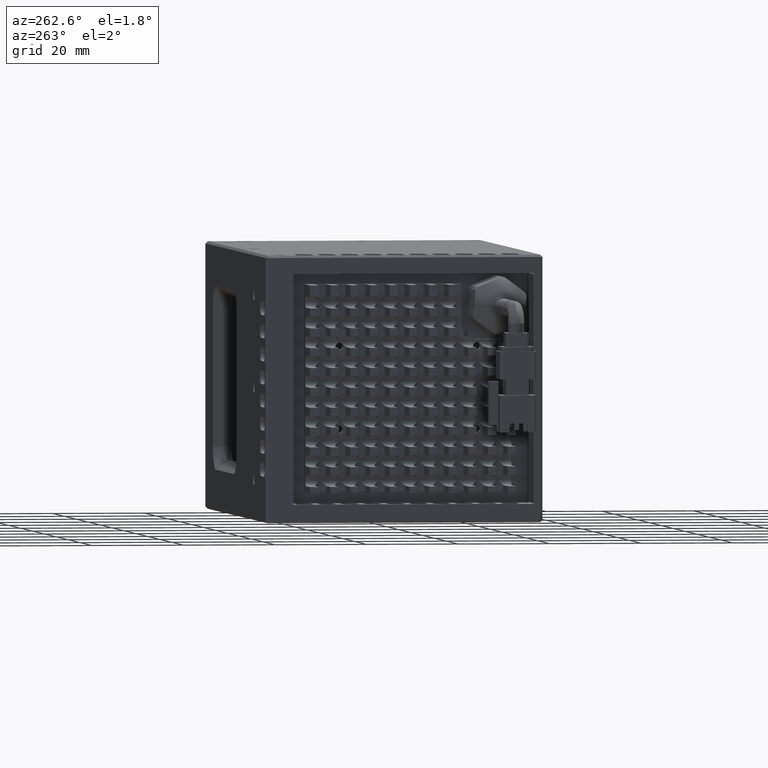
[diagram: clean part render]
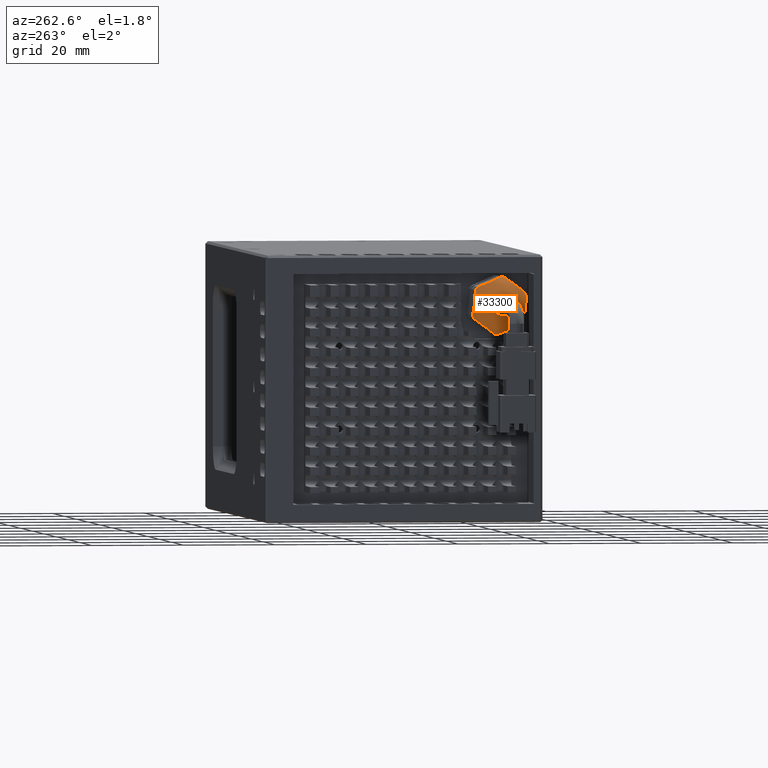
[diagram: same view with one face highlighted and labeled with its STEP entity id]
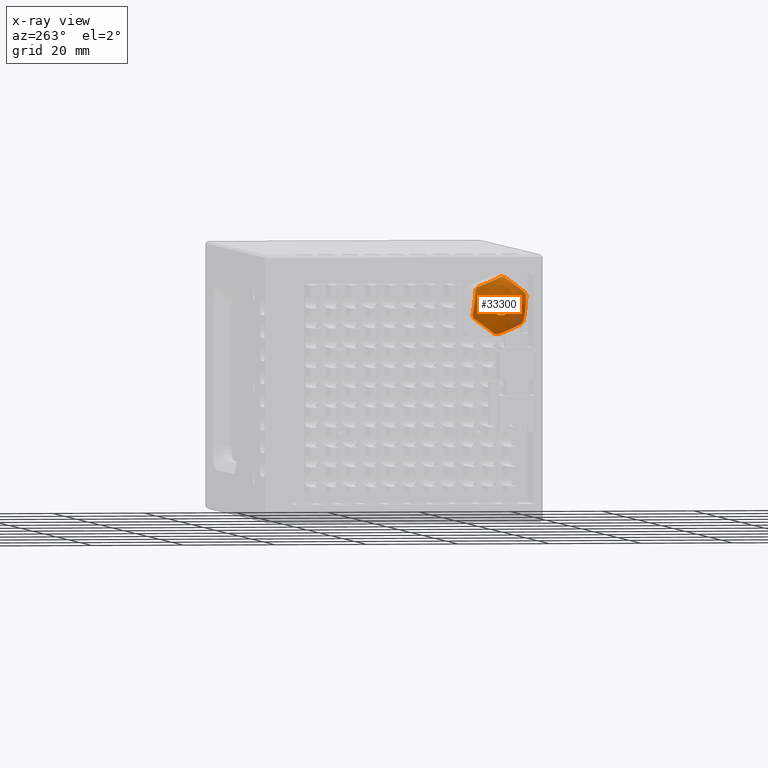
[diagram: x-ray of the same camera — body ghosted, the highlighted face saturated]
A machine part, auxiliary view. The second image highlights one B-rep face of the part: STEP entity #33300.
The next image is the same camera in x-ray: the body ghosted, the highlighted face saturated — about 18% of this face is hidden behind the body in this view.
In plain terms, the highlighted face is a freeform B-spline surface patch.
Its self-contained STEP definition (entity closure, byte-faithful):
#339 = B_SPLINE_CURVE_WITH_KNOTS ( 'NONE', 3,
 ( #25311, #30600, #67697, #35997, #4236, #41335, #9568, #46672, #14885, #51961, #20219, #57266, #25529, #62621, #30837, #67919 ),
 .UNSPECIFIED., .F., .F.,
 ( 4, 2, 2, 2, 2, 2, 2, 4 ),
 ( 1.319765775190741900E-016, 0.001475511169496877800, 0.002213266754245249300, 0.002951022338993621600, 0.003688777923741994200, 0.004426533508490366900, 0.005164289093238740400, 0.005902044677987113000 ),
 .UNSPECIFIED. ) ;
#423 = CIRCLE ( 'NONE', #9991, 6.249999999999515100 ) ;
#1558 = AXIS2_PLACEMENT_3D ( 'NONE', #48785, #17014, #54081 ) ;
#1718 = CARTESIAN_POINT ( 'NONE',  ( -68.86375292816285300, 1.775993330902647400, 47.00000000000953500 ) ) ;
#1729 = CARTESIAN_POINT ( 'NONE',  ( -69.15758857129378600, 1.732659728277374100, 40.91846227494003300 ) ) ;
#1946 = CARTESIAN_POINT ( 'NONE',  ( -69.14023917023453700, -2.613706873808888000, 42.79619360306332300 ) ) ;
#1994 = CARTESIAN_POINT ( 'NONE',  ( -68.86375292816285300, 1.775993330902647400, 47.00000000000953500 ) ) ;
#2747 = CARTESIAN_POINT ( 'NONE',  ( -69.67060427605069600, 3.094496305756325900, 52.53063493704631500 ) ) ;
#3124 = CARTESIAN_POINT ( 'NONE',  ( -69.46139549951456600, 7.533684453883029900, 45.96886008579814800 ) ) ;
#3510 = DIRECTION ( 'NONE',  ( 0.0000000000000000000, 0.1155358669953259300, -0.9933033088828600000 ) ) ;
#3586 = EDGE_LOOP ( 'NONE', ( #58492, #47617 ) ) ;
#3826 = FACE_OUTER_BOUND ( 'NONE', #49597, .T. ) ;
#4018 = CARTESIAN_POINT ( 'NONE',  ( -68.86375292816285300, -3.465854137917597600, 43.59624690766882100 ) ) ;
#4135 = CARTESIAN_POINT ( 'NONE',  ( -69.74788720313205200, 5.516405416110333500, 42.80281597644518900 ) ) ;
#4236 = CARTESIAN_POINT ( 'NONE',  ( -69.67060427605079600, -2.354425536202253700, 50.90717453971647200 ) ) ;
#4239 = CARTESIAN_POINT ( 'NONE',  ( -69.14023917023423800, -4.059459903799619500, 48.69968869381483500 ) ) ;
#4781 = CARTESIAN_POINT ( 'NONE',  ( -70.08185129819510500, 9.665487355787213600, 44.77912691616013100 ) ) ;
#5338 = ORIENTED_EDGE ( 'NONE', *, *, #27781, .T. ) ;
#7086 = DIRECTION ( 'NONE',  ( 0.0000000000000000000, 0.1155358669953666000, -0.9933033088828552300 ) ) ;
#7104 = CARTESIAN_POINT ( 'NONE',  ( -69.38120834824229600, 1.330491881488283800, 41.09220812617983400 ) ) ;
#7320 = CARTESIAN_POINT ( 'NONE',  ( -68.86375292816285300, -2.992679756905907600, 42.95991869122291700 ) ) ;
#7370 = DIRECTION ( 'NONE',  ( 0.0000000000000000000, 0.1155358669952932900, -0.9933033088828637800 ) ) ;
#7387 = ORIENTED_EDGE ( 'NONE', *, *, #40424, .T. ) ;
#7520 = B_SPLINE_CURVE_WITH_KNOTS ( 'NONE', 3,
 ( #55553, #29152, #66212, #34515, #2747, #39828, #8113, #45198, #13416, #50462, #18740, #55802, #24057, #61153, #29380, #66454 ),
 .UNSPECIFIED., .F., .F.,
 ( 4, 2, 2, 2, 2, 2, 2, 4 ),
 ( 2.596296363159514900E-017, 0.001475511169496785000, 0.002213266754245160400, 0.002951022338993536100, 0.003688777923741910100, 0.004426533508490284500, 0.005164289093238658800, 0.005902044677987033200 ),
 .UNSPECIFIED. ) ;
#8039 = CARTESIAN_POINT ( 'NONE',  ( -68.86375292816285300, 7.017840799722939900, 50.40375309235000900 ) ) ;
#8113 = CARTESIAN_POINT ( 'NONE',  ( -69.76751117526085000, 3.765905383833764800, 52.24057062004008900 ) ) ;
#8486 = CARTESIAN_POINT ( 'NONE',  ( -69.14023917023460800, 7.611446565604945000, 45.30031130620378800 ) ) ;
#9355 = CARTESIAN_POINT ( 'NONE',  ( -69.38120834824232500, -3.563055236811629700, 44.43191963570969700 ) ) ;
#9473 = CARTESIAN_POINT ( 'NONE',  ( -69.76791800731975000, 4.921827646007848500, 42.36068727452639800 ) ) ;
#9568 = CARTESIAN_POINT ( 'NONE',  ( -69.76751117526085000, -1.767517929904791800, 51.34359969915998100 ) ) ;
#9576 = CARTESIAN_POINT ( 'NONE',  ( -68.86375292816285300, -4.107156259765115900, 49.10975138200239300 ) ) ;
#9786 = VERTEX_POINT ( 'NONE', #19863 ) ;
#9991 = AXIS2_PLACEMENT_3D ( 'NONE', #1718, #38772, #7086 ) ;
#10058 = CARTESIAN_POINT ( 'NONE',  ( -76.08316824912812100, -1.440166118735522800, 43.48737515085923600 ) ) ;
#10138 = CARTESIAN_POINT ( 'NONE',  ( -68.86375292816285300, -2.992679756905907600, 42.95991869122291700 ) ) ;
#10774 = EDGE_CURVE ( 'NONE', #46756, #15233, #25694, .T. ) ;
#11130 = VERTEX_POINT ( 'NONE', #42309 ) ;
#11335 = CARTESIAN_POINT ( 'NONE',  ( -68.86375292816285300, -3.792667049684699700, 49.83769652459977800 ) ) ;
#12026 = CARTESIAN_POINT ( 'NONE',  ( -68.86375292816285300, 0.6615168280449691400, 53.14983269078837200 ) ) ;
#12061 = DIRECTION ( 'NONE',  ( 1.000000000000000000, 3.435095995686201000E-016, -5.943609381515295800E-025 ) ) ;
#12370 = CARTESIAN_POINT ( 'NONE',  ( -69.67060427605066800, 0.4574903560481536900, 41.46936506297194600 ) ) ;
#12371 = CIRCLE ( 'NONE', #19592, 2.000000000000002200 ) ;
#13416 = CARTESIAN_POINT ( 'NONE',  ( -69.74827311948452300, 4.449950362044707400, 51.94504730067372800 ) ) ;
#13702 = VERTEX_POINT ( 'NONE', #25810 ) ;
#13801 = CARTESIAN_POINT ( 'NONE',  ( -68.86375292816285300, 7.659142921570422800, 44.89024861801639300 ) ) ;
#13911 = EDGE_CURVE ( 'NONE', #15233, #22185, #60643, .T. ) ;
#14660 = CARTESIAN_POINT ( 'NONE',  ( -69.67060427605076700, -3.672928511056312100, 45.37653960267974900 ) ) ;
#14791 = CARTESIAN_POINT ( 'NONE',  ( -69.67125075074403600, 4.331099784588070100, 41.92142136905575700 ) ) ;
#14885 = CARTESIAN_POINT ( 'NONE',  ( -69.74827311948448000, -1.169564738817325400, 51.78823836793858200 ) ) ;
#15233 = VERTEX_POINT ( 'NONE', #61267 ) ;
#15394 = CARTESIAN_POINT ( 'NONE',  ( -67.11748828113987000, 5.592383779673666000, 41.10515007437504000 ) ) ;
#17014 = DIRECTION ( 'NONE',  ( 1.000000000000000000, 3.435095995686201000E-016, -5.943609381515295800E-025 ) ) ;
#17638 = CARTESIAN_POINT ( 'NONE',  ( -68.86375292816285300, 1.775993330902647400, 47.00000000000953500 ) ) ;
#17708 = CARTESIAN_POINT ( 'NONE',  ( -69.76751117526065100, -0.2139187220289190400, 41.75942937997803700 ) ) ;
#18388 = VERTEX_POINT ( 'NONE', #11335 ) ;
#18740 = CARTESIAN_POINT ( 'NONE',  ( -69.61395248318250100, 5.116209980309052200, 51.65720766991690000 ) ) ;
#18877 = CARTESIAN_POINT ( 'NONE',  ( -69.67060427605062500, 7.224915172861658500, 48.62346039733898100 ) ) ;
#18896 = EDGE_CURVE ( 'NONE', #9786, #31673, #56529, .T. ) ;
#19592 = AXIS2_PLACEMENT_3D ( 'NONE', #26876, #63931, #32187 ) ;
#19660 = CARTESIAN_POINT ( 'NONE',  ( -69.15758857129368700, 7.021092693573398200, 43.92170313676363900 ) ) ;
#19863 = CARTESIAN_POINT ( 'NONE',  ( -72.09568362246530200, 2.007065064893367900, 45.01339338224320800 ) ) ;
#19988 = CARTESIAN_POINT ( 'NONE',  ( -69.76751117526072200, -3.757429982836344900, 46.10302907912925000 ) ) ;
#20114 = VERTEX_POINT ( 'NONE', #36978 ) ;
#20124 = CARTESIAN_POINT ( 'NONE',  ( -69.46139549951458000, 3.761845531830432200, 41.49812326325859900 ) ) ;
#20219 = CARTESIAN_POINT ( 'NONE',  ( -69.61395248318247300, -0.5871584972338312900, 52.22131630749275600 ) ) ;
#20495 = CARTESIAN_POINT ( 'NONE',  ( -69.57956255432687000, 2.515760127302150400, 53.42479840440135800 ) ) ;
#20689 = ORIENTED_EDGE ( 'NONE', *, *, #59308, .T. ) ;
#20729 = CARTESIAN_POINT ( 'NONE',  ( -69.57956255432743800, 1.036226534503087900, 40.57520159561696000 ) ) ;
#21466 = CARTESIAN_POINT ( 'NONE',  ( -72.09568362246530200, 1.775993330902716700, 47.00000000000893200 ) ) ;
#22185 = VERTEX_POINT ( 'NONE', #58457 ) ;
#22985 = DIRECTION ( 'NONE',  ( 0.0000000000000000000, 0.1155358669953259300, -0.9933033088828600000 ) ) ;
#23047 = CARTESIAN_POINT ( 'NONE',  ( -69.74827311948423900, -0.8979637002394858000, 42.05495269934421300 ) ) ;
#24057 = CARTESIAN_POINT ( 'NONE',  ( -69.36540694991353500, 5.760612796175310600, 51.37881068547886800 ) ) ;
#24217 = CARTESIAN_POINT ( 'NONE',  ( -69.76751117526068000, 7.309416644641678400, 47.89697092088950100 ) ) ;
#25038 = CARTESIAN_POINT ( 'NONE',  ( -68.86375292816285300, 7.659142921570422800, 44.89024861801639300 ) ) ;
#25219 = CARTESIAN_POINT ( 'NONE',  ( -68.86375292816285300, 7.344653711489161000, 44.16230347541733900 ) ) ;
#25311 = CARTESIAN_POINT ( 'NONE',  ( -68.86375292816285300, -3.792667049684699700, 49.83769652459977800 ) ) ;
#25316 = CARTESIAN_POINT ( 'NONE',  ( -69.74827311948432400, -3.843521769959718600, 46.84319106727402700 ) ) ;
#25436 = CARTESIAN_POINT ( 'NONE',  ( -69.14023917023473600, 3.221746360893675800, 41.09650490925837100 ) ) ;
#25529 = CARTESIAN_POINT ( 'NONE',  ( -69.36540694991340700, -0.02385822844040110000, 52.64018702408416300 ) ) ;
#25694 = CIRCLE ( 'NONE', #42064, 6.249999999999516800 ) ;
#25807 = CARTESIAN_POINT ( 'NONE',  ( -67.11748828113964300, -2.040397117867909200, 52.89484992564335600 ) ) ;
#25810 = CARTESIAN_POINT ( 'NONE',  ( -68.86375292816285300, -4.107156259765115900, 49.10975138200239300 ) ) ;
#26772 = DIRECTION ( 'NONE',  ( 0.0000000000000000000, -0.1155358669953258200, 0.9933033088828601100 ) ) ;
#26876 = CARTESIAN_POINT ( 'NONE',  ( -72.09568362246530200, 1.775993330902716700, 47.00000000000893200 ) ) ;
#27781 = EDGE_CURVE ( 'NONE', #55237, #37792, #44369, .T. ) ;
#28319 = AXIS2_PLACEMENT_3D ( 'NONE', #31019, #68104, #36409 ) ;
#28327 = CIRCLE ( 'NONE', #40387, 6.249999999999519500 ) ;
#28348 = CARTESIAN_POINT ( 'NONE',  ( -69.61395248318233100, -1.564223318503453500, 42.34279233010092000 ) ) ;
#29152 = CARTESIAN_POINT ( 'NONE',  ( -69.15758857129343100, 1.819326933526871400, 53.08153772507832700 ) ) ;
#29380 = CARTESIAN_POINT ( 'NONE',  ( -69.01067074972824900, 6.359593161516713200, 51.12003725472583000 ) ) ;
#29524 = CARTESIAN_POINT ( 'NONE',  ( -69.74827311948443800, 7.395508431765049900, 47.15680893274469600 ) ) ;
#29716 = ORIENTED_EDGE ( 'NONE', *, *, #35126, .F. ) ;
#30514 = CARTESIAN_POINT ( 'NONE',  ( -69.38120834824218300, 6.669540449203119600, 43.66028849047898300 ) ) ;
#30534 = EDGE_CURVE ( 'NONE', #11130, #56916, #7520, .T. ) ;
#30600 = CARTESIAN_POINT ( 'NONE',  ( -69.15758857129357300, -3.469106031768471400, 50.07829686325383300 ) ) ;
#30606 = CARTESIAN_POINT ( 'NONE',  ( -69.61395248318233100, -3.927375146640508200, 47.56410863758488000 ) ) ;
#30723 = CARTESIAN_POINT ( 'NONE',  ( -68.86375292816285300, 2.890469833762177000, 40.85016730923076300 ) ) ;
#30837 = CARTESIAN_POINT ( 'NONE',  ( -69.01067074972813500, 0.4997363190867983900, 53.02953252146132700 ) ) ;
#31019 = CARTESIAN_POINT ( 'NONE',  ( -68.86375292816285300, 1.775993330902647400, 47.00000000000953500 ) ) ;
#31101 =( BOUNDED_SURFACE ( )  B_SPLINE_SURFACE ( 3, 3, ( 
 ( #67968, #20495, #57563, #25807 ),
 ( #62890, #31117, #68204, #36498 ),
 ( #4781, #41860, #10058, #47160 ),
 ( #15394, #52467, #20729, #57805 ) ),
 .UNSPECIFIED., .F., .F., .F. ) 
 B_SPLINE_SURFACE_WITH_KNOTS ( ( 4, 4 ),
 ( 4, 4 ),
 ( 0.0000000000000000000, 1.000000000000000000 ),
 ( 0.0000000000000000000, 1.000000000000000000 ),
 .UNSPECIFIED. ) 
 GEOMETRIC_REPRESENTATION_ITEM ( )  RATIONAL_B_SPLINE_SURFACE ( (
 ( 1.000000000000000000, 0.7017694484579010100, 0.7017694484579010100, 1.000000000000000000),
 ( 0.6732171387617810200, 0.4724432201612612800, 0.4724432201612612800, 0.6732171387617810200),
 ( 0.6732171387617810200, 0.4724432201612612800, 0.4724432201612612800, 0.6732171387617810200),
 ( 1.000000000000000000, 0.7017694484579010100, 0.7017694484579010100, 1.000000000000000000) ) ) 
 REPRESENTATION_ITEM ( '' )  SURFACE ( )  );
#31117 = CARTESIAN_POINT ( 'NONE',  ( -76.08316824912783700, 4.992152780540819500, 50.51262484915948600 ) ) ;
#31673 = VERTEX_POINT ( 'NONE', #55399 ) ;
#32118 = B_SPLINE_CURVE_WITH_KNOTS ( 'NONE', 3,
 ( #25219, #19660, #30514, #67607, #35902, #4135, #41232, #9473, #46566, #14791, #51865, #20124, #57178, #25436, #62528, #30723 ),
 .UNSPECIFIED., .F., .F.,
 ( 4, 2, 2, 2, 2, 2, 2, 4 ),
 ( 3.506984956607857700E-016, 0.001475511169496294900, 0.002213266754244266200, 0.002951022338992237300, 0.003688777923740208700, 0.004426533508488178500, 0.005164289093236150400, 0.005902044677984120600 ),
 .UNSPECIFIED. ) ;
#32140 = ORIENTED_EDGE ( 'NONE', *, *, #13911, .F. ) ;
#32187 = DIRECTION ( 'NONE',  ( 0.0000000000000000000, -0.1155358669953258200, 0.9933033088828601100 ) ) ;
#32302 = CIRCLE ( 'NONE', #61443, 6.249999999999519500 ) ;
#33300 = ADVANCED_FACE ( 'NONE', ( #60203, #3826 ), #31101, .T. ) ;
#33491 = EDGE_CURVE ( 'NONE', #20114, #54142, #423, .T. ) ;
#33586 = CIRCLE ( 'NONE', #28319, 6.249999999999519500 ) ;
#33715 = CARTESIAN_POINT ( 'NONE',  ( -69.36540694991359100, -2.208626134369361600, 42.62118931453878200 ) ) ;
#34436 = CARTESIAN_POINT ( 'NONE',  ( -69.38120834824201200, 7.115041898616981400, 49.56808036430897600 ) ) ;
#34515 = CARTESIAN_POINT ( 'NONE',  ( -69.61245713189376300, 2.872257331551832500, 52.62664733599891800 ) ) ;
#34893 = CARTESIAN_POINT ( 'NONE',  ( -69.61395248318253000, 7.479361808445839100, 46.43589136243380700 ) ) ;
#35126 = EDGE_CURVE ( 'NONE', #18388, #13702, #28327, .T. ) ;
#35138 = VERTEX_POINT ( 'NONE', #44097 ) ;
#35277 = DIRECTION ( 'NONE',  ( 1.000000000000000000, 3.435095995686201000E-016, -5.943609381515295800E-025 ) ) ;
#35902 = CARTESIAN_POINT ( 'NONE',  ( -69.67060427605058200, 5.906412198007584100, 43.09282546030131300 ) ) ;
#35997 = CARTESIAN_POINT ( 'NONE',  ( -69.61245713189387600, -2.548694199875747300, 50.76271614182066800 ) ) ;
#36001 = CARTESIAN_POINT ( 'NONE',  ( -69.36540694991344900, -4.008477693713319700, 48.26137633861409200 ) ) ;
#36409 = DIRECTION ( 'NONE',  ( 0.0000000000000000000, 0.1155358669953259300, -0.9933033088828600000 ) ) ;
#36498 = CARTESIAN_POINT ( 'NONE',  ( -70.08185129819501900, -6.113500693981673200, 49.22087308385862800 ) ) ;
#36847 = EDGE_CURVE ( 'NONE', #55237, #56916, #36933, .T. ) ;
#36933 = CIRCLE ( 'NONE', #45878, 6.249999999999519500 ) ;
#36978 = CARTESIAN_POINT ( 'NONE',  ( -68.86375292816285300, -3.465854137917597600, 43.59624690766882100 ) ) ;
#37395 = ORIENTED_EDGE ( 'NONE', *, *, #61141, .T. ) ;
#37740 = CARTESIAN_POINT ( 'NONE',  ( -68.86375292816285300, 2.102806242668322900, 40.75855038307755500 ) ) ;
#37792 = VERTEX_POINT ( 'NONE', #25038 ) ;
#38546 = ORIENTED_EDGE ( 'NONE', *, *, #36847, .F. ) ;
#38772 = DIRECTION ( 'NONE',  ( 1.000000000000000000, 3.435095995686201000E-016, -5.943609381515295800E-025 ) ) ;
#38793 = CARTESIAN_POINT ( 'NONE',  ( -68.86375292816285300, 2.102806242668322900, 40.75855038307755500 ) ) ;
#39022 = CARTESIAN_POINT ( 'NONE',  ( -69.01067074972844800, -2.807606499710740600, 42.87996274529179200 ) ) ;
#39075 = DIRECTION ( 'NONE',  ( 1.000000000000000000, 3.435095995686201000E-016, -5.943609381515295800E-025 ) ) ;
#39134 = ORIENTED_EDGE ( 'NONE', *, *, #48254, .F. ) ;
#39828 = CARTESIAN_POINT ( 'NONE',  ( -69.74788720313222300, 3.540655277063015300, 52.33788389820305300 ) ) ;
#40226 = CARTESIAN_POINT ( 'NONE',  ( -69.36540694991369100, 7.560464355518643500, 45.73862366140457400 ) ) ;
#40387 = AXIS2_PLACEMENT_3D ( 'NONE', #17638, #54693, #22985 ) ;
#40424 = EDGE_CURVE ( 'NONE', #20114, #13702, #64650, .T. ) ;
#40681 = ORIENTED_EDGE ( 'NONE', *, *, #10774, .F. ) ;
#40866 = EDGE_CURVE ( 'NONE', #41146, #11130, #33586, .T. ) ;
#41146 = VERTEX_POINT ( 'NONE', #12026 ) ;
#41232 = CARTESIAN_POINT ( 'NONE',  ( -69.76751117526056600, 5.319504591710440900, 42.65640030085803100 ) ) ;
#41335 = CARTESIAN_POINT ( 'NONE',  ( -69.74788720313225100, -1.964418754304794800, 51.19718402357275300 ) ) ;
#41349 = CARTESIAN_POINT ( 'NONE',  ( -69.01067074972826300, -4.083863511527429300, 48.90949526674420900 ) ) ;
#41860 = CARTESIAN_POINT ( 'NONE',  ( -76.08316824912810700, 5.712523559291454100, 44.31933875745265500 ) ) ;
#42064 = AXIS2_PLACEMENT_3D ( 'NONE', #1994, #39075, #7370 ) ;
#42309 = CARTESIAN_POINT ( 'NONE',  ( -68.86375292816285300, 1.449180419135050600, 53.24144961694118200 ) ) ;
#42837 = EDGE_CURVE ( 'NONE', #31673, #9786, #12371, .T. ) ;
#43048 = CARTESIAN_POINT ( 'NONE',  ( -68.86375292816285300, 6.544666418712424200, 51.04008130879449800 ) ) ;
#43851 = CARTESIAN_POINT ( 'NONE',  ( -68.86375292816285300, 1.775993330902647400, 47.00000000000953500 ) ) ;
#44097 = CARTESIAN_POINT ( 'NONE',  ( -68.86375292816285300, 7.344653711489161000, 44.16230347541733900 ) ) ;
#44166 = CARTESIAN_POINT ( 'NONE',  ( -69.61245713189381900, 0.6797293302525440100, 41.37335266401940700 ) ) ;
#44369 = B_SPLINE_CURVE_WITH_KNOTS ( 'NONE', 3,
 ( #8039, #45360, #34436, #50613, #18877, #55953, #24217, #61315, #29524, #66610, #34893, #3124, #40226, #8486, #45586, #13801 ),
 .UNSPECIFIED., .F., .F.,
 ( 4, 2, 2, 2, 2, 2, 2, 4 ),
 ( 1.497122641742852700E-016, 0.001475511169496494800, 0.002213266754244667300, 0.002951022338992840100, 0.003688777923741012800, 0.004426533508489185500, 0.005164289093237358700, 0.005902044677985531000 ),
 .UNSPECIFIED. ) ;
#45198 = CARTESIAN_POINT ( 'NONE',  ( -69.76791800732003400, 4.220838849718489000, 52.04402879572795400 ) ) ;
#45360 = CARTESIAN_POINT ( 'NONE',  ( -69.15758857129347300, 7.064426296198351300, 50.00324086183330500 ) ) ;
#45586 = CARTESIAN_POINT ( 'NONE',  ( -69.01067074972847600, 7.635850173332784200, 45.09050473327419400 ) ) ;
#45878 = AXIS2_PLACEMENT_3D ( 'NONE', #43851, #12061, #49166 ) ;
#46098 = ORIENTED_EDGE ( 'NONE', *, *, #30534, .T. ) ;
#46442 = CARTESIAN_POINT ( 'NONE',  ( -69.61245713189386200, -3.644958200525246100, 45.13606880583137800 ) ) ;
#46566 = CARTESIAN_POINT ( 'NONE',  ( -69.74827311948429600, 4.721551400623289900, 42.21176163207969300 ) ) ;
#46583 = EDGE_CURVE ( 'NONE', #35138, #22185, #32118, .T. ) ;
#46672 = CARTESIAN_POINT ( 'NONE',  ( -69.76791800731994900, -1.369840984201970800, 51.63931272549179100 ) ) ;
#46756 = VERTEX_POINT ( 'NONE', #37740 ) ;
#47160 = CARTESIAN_POINT ( 'NONE',  ( -70.08185129819513300, -5.393129915231303300, 43.02758699215177500 ) ) ;
#47617 = ORIENTED_EDGE ( 'NONE', *, *, #18896, .T. ) ;
#48254 = EDGE_CURVE ( 'NONE', #35138, #37792, #32302, .T. ) ;
#48785 = CARTESIAN_POINT ( 'NONE',  ( -68.86375292816285300, 1.775993330902647400, 47.00000000000953500 ) ) ;
#49166 = DIRECTION ( 'NONE',  ( 0.0000000000000000000, 0.1155358669953259300, -0.9933033088828600000 ) ) ;
#49168 = B_SPLINE_CURVE_WITH_KNOTS ( 'NONE', 3,
 ( #38793, #1729, #7104, #44166, #12370, #49474, #17708, #54756, #23047, #60114, #28348, #65413, #33715, #1946, #39022, #7320 ),
 .UNSPECIFIED., .F., .F.,
 ( 4, 2, 2, 2, 2, 2, 2, 4 ),
 ( 4.690887623826672200E-016, 0.001475511169496401600, 0.002213266754244368100, 0.002951022338992334400, 0.003688777923740300700, 0.004426533508488267000, 0.005164289093236232800, 0.005902044677984199600 ),
 .UNSPECIFIED. ) ;
#49474 = CARTESIAN_POINT ( 'NONE',  ( -69.74788720313206600, 0.01133138474170054300, 41.66211610181510800 ) ) ;
#49597 = EDGE_LOOP ( 'NONE', ( #39134, #67365, #32140, #40681, #20689, #58947, #7387, #29716, #37395, #60988, #46098, #38546, #5338 ) ) ;
#50462 = CARTESIAN_POINT ( 'NONE',  ( -69.67125075074416400, 4.896618213582739200, 51.75207641375039500 ) ) ;
#50613 = CARTESIAN_POINT ( 'NONE',  ( -69.61245713189376300, 7.196944862330591200, 48.86393119418734400 ) ) ;
#51735 = CARTESIAN_POINT ( 'NONE',  ( -69.74788720313216600, -3.729080700465533300, 45.85930012537919300 ) ) ;
#51865 = CARTESIAN_POINT ( 'NONE',  ( -69.61395248318244500, 4.139145159040094900, 41.77868369252573200 ) ) ;
#51961 = CARTESIAN_POINT ( 'NONE',  ( -69.67125075074409300, -0.7791131227819094700, 52.07857863096266000 ) ) ;
#52467 = CARTESIAN_POINT ( 'NONE',  ( -69.57956255432741000, 3.970657990856444600, 40.91651937782536000 ) ) ;
#54081 = DIRECTION ( 'NONE',  ( 0.0000000000000000000, 0.1155358669953259300, -0.9933033088828600000 ) ) ;
#54142 = VERTEX_POINT ( 'NONE', #10138 ) ;
#54693 = DIRECTION ( 'NONE',  ( 1.000000000000000000, 3.435095995686201000E-016, -5.943609381515295800E-025 ) ) ;
#54756 = CARTESIAN_POINT ( 'NONE',  ( -69.76791800731977800, -0.6688521879133749700, 41.95597120429006600 ) ) ;
#55237 = VERTEX_POINT ( 'NONE', #58992 ) ;
#55399 = CARTESIAN_POINT ( 'NONE',  ( -72.09568362246530200, 1.544921596912064900, 48.98660661777465500 ) ) ;
#55553 = CARTESIAN_POINT ( 'NONE',  ( -68.86375292816285300, 1.449180419135050600, 53.24144961694118200 ) ) ;
#55802 = CARTESIAN_POINT ( 'NONE',  ( -69.46139549951450900, 5.547832252956119700, 51.47073682254839600 ) ) ;
#55953 = CARTESIAN_POINT ( 'NONE',  ( -69.74788720313210900, 7.281067362270874800, 48.14069987463955900 ) ) ;
#56529 = CIRCLE ( 'NONE', #61454, 2.000000000000002200 ) ;
#56916 = VERTEX_POINT ( 'NONE', #43048 ) ;
#57061 = CARTESIAN_POINT ( 'NONE',  ( -69.76791800731982100, -3.814686503018229800, 46.59528392977304600 ) ) ;
#57178 = CARTESIAN_POINT ( 'NONE',  ( -69.36540694991373400, 3.575844890246930000, 41.35981297593453100 ) ) ;
#57266 = CARTESIAN_POINT ( 'NONE',  ( -69.46139549951436700, -0.2098588700239784100, 52.50187673676001800 ) ) ;
#57563 = CARTESIAN_POINT ( 'NONE',  ( -69.57956255432689800, -0.4186713290508614100, 53.08348062219300800 ) ) ;
#57805 = CARTESIAN_POINT ( 'NONE',  ( -67.11748828113989900, -0.5854992543141562800, 40.38657089906728700 ) ) ;
#58457 = CARTESIAN_POINT ( 'NONE',  ( -68.86375292816285300, 2.890469833762177000, 40.85016730923076300 ) ) ;
#58492 = ORIENTED_EDGE ( 'NONE', *, *, #42837, .T. ) ;
#58523 = DIRECTION ( 'NONE',  ( 1.000000000000000000, 3.435095995686201000E-016, -5.943609381515295800E-025 ) ) ;
#58947 = ORIENTED_EDGE ( 'NONE', *, *, #33491, .F. ) ;
#58992 = CARTESIAN_POINT ( 'NONE',  ( -68.86375292816285300, 7.017840799722939900, 50.40375309235000900 ) ) ;
#59308 = EDGE_CURVE ( 'NONE', #46756, #54142, #49168, .T. ) ;
#60114 = CARTESIAN_POINT ( 'NONE',  ( -69.67125075074393700, -1.344631551777275300, 42.24792358626742600 ) ) ;
#60203 = FACE_BOUND ( 'NONE', #3586, .T. ) ;
#60643 = CIRCLE ( 'NONE', #1558, 6.249999999999519500 ) ;
#60988 = ORIENTED_EDGE ( 'NONE', *, *, #40866, .T. ) ;
#61141 = EDGE_CURVE ( 'NONE', #18388, #41146, #339, .T. ) ;
#61153 = CARTESIAN_POINT ( 'NONE',  ( -69.14023917023431000, 6.165693535615012900, 51.20380639695424200 ) ) ;
#61267 = CARTESIAN_POINT ( 'NONE',  ( -68.86375292816285300, 2.498092499623379800, 40.79185431949214500 ) ) ;
#61315 = CARTESIAN_POINT ( 'NONE',  ( -69.76791800731984900, 7.366673164823561500, 47.40471607024569100 ) ) ;
#61443 = AXIS2_PLACEMENT_3D ( 'NONE', #66992, #35277, #3510 ) ;
#61454 = AXIS2_PLACEMENT_3D ( 'NONE', #21466, #58523, #26772 ) ;
#62409 = CARTESIAN_POINT ( 'NONE',  ( -69.67125075074402200, -3.899738005462314700, 47.32650221722131100 ) ) ;
#62528 = CARTESIAN_POINT ( 'NONE',  ( -69.01067074972857500, 3.052250342719560600, 40.97046747855725400 ) ) ;
#62621 = CARTESIAN_POINT ( 'NONE',  ( -69.14023917023413900, 0.3302403009129766800, 52.90349509076042300 ) ) ;
#62890 = CARTESIAN_POINT ( 'NONE',  ( -70.08185129819497700, 8.945116577036481300, 50.97241300786692600 ) ) ;
#63931 = DIRECTION ( 'NONE',  ( 1.000000000000000000, 3.435095995686201000E-016, -5.943609381515295800E-025 ) ) ;
#64650 = B_SPLINE_CURVE_WITH_KNOTS ( 'NONE', 3,
 ( #4018, #67488, #9355, #46442, #14660, #51735, #19988, #57061, #25316, #62409, #30606, #67700, #36001, #4239, #41349, #9576 ),
 .UNSPECIFIED., .F., .F.,
 ( 4, 2, 2, 2, 2, 2, 2, 4 ),
 ( 3.681255805517746600E-016, 0.001475511169496699300, 0.002213266754244868100, 0.002951022338993037000, 0.003688777923741205800, 0.004426533508489373700, 0.005164289093237543400, 0.005902044677985712200 ),
 .UNSPECIFIED. ) ;
#65413 = CARTESIAN_POINT ( 'NONE',  ( -69.46139549951442400, -1.995845591150274600, 42.52926317746930400 ) ) ;
#66212 = CARTESIAN_POINT ( 'NONE',  ( -69.38120834824199800, 2.221494780315773600, 52.90779187383861200 ) ) ;
#66454 = CARTESIAN_POINT ( 'NONE',  ( -68.86375292816285300, 6.544666418712424200, 51.04008130879449800 ) ) ;
#66610 = CARTESIAN_POINT ( 'NONE',  ( -69.67125075074412200, 7.451724667267646000, 46.67349778279739100 ) ) ;
#66992 = CARTESIAN_POINT ( 'NONE',  ( -68.86375292816285300, 1.775993330902647400, 47.00000000000953500 ) ) ;
#67365 = ORIENTED_EDGE ( 'NONE', *, *, #46583, .T. ) ;
#67488 = CARTESIAN_POINT ( 'NONE',  ( -69.15758857129377200, -3.512439634392970200, 43.99675913818516200 ) ) ;
#67607 = CARTESIAN_POINT ( 'NONE',  ( -69.61245713189369200, 6.100680861680974200, 43.23728385819703100 ) ) ;
#67697 = CARTESIAN_POINT ( 'NONE',  ( -69.38120834824214000, -3.117553787398188000, 50.33971150953847500 ) ) ;
#67700 = CARTESIAN_POINT ( 'NONE',  ( -69.46139549951433900, -3.981697792077699500, 48.03113991422054600 ) ) ;
#67919 = CARTESIAN_POINT ( 'NONE',  ( -68.86375292816285300, 0.6615168280449691400, 53.14983269078837200 ) ) ;
#67968 = CARTESIAN_POINT ( 'NONE',  ( -67.11748828113961500, 4.137485916119175900, 53.61342910095101600 ) ) ;
#68104 = DIRECTION ( 'NONE',  ( -1.000000000000000000, -3.435095995686201000E-016, 5.943609381515295800E-025 ) ) ;
#68204 = CARTESIAN_POINT ( 'NONE',  ( -76.08316824912785100, -2.160536897485977100, 49.68066124256606700 ) ) ;